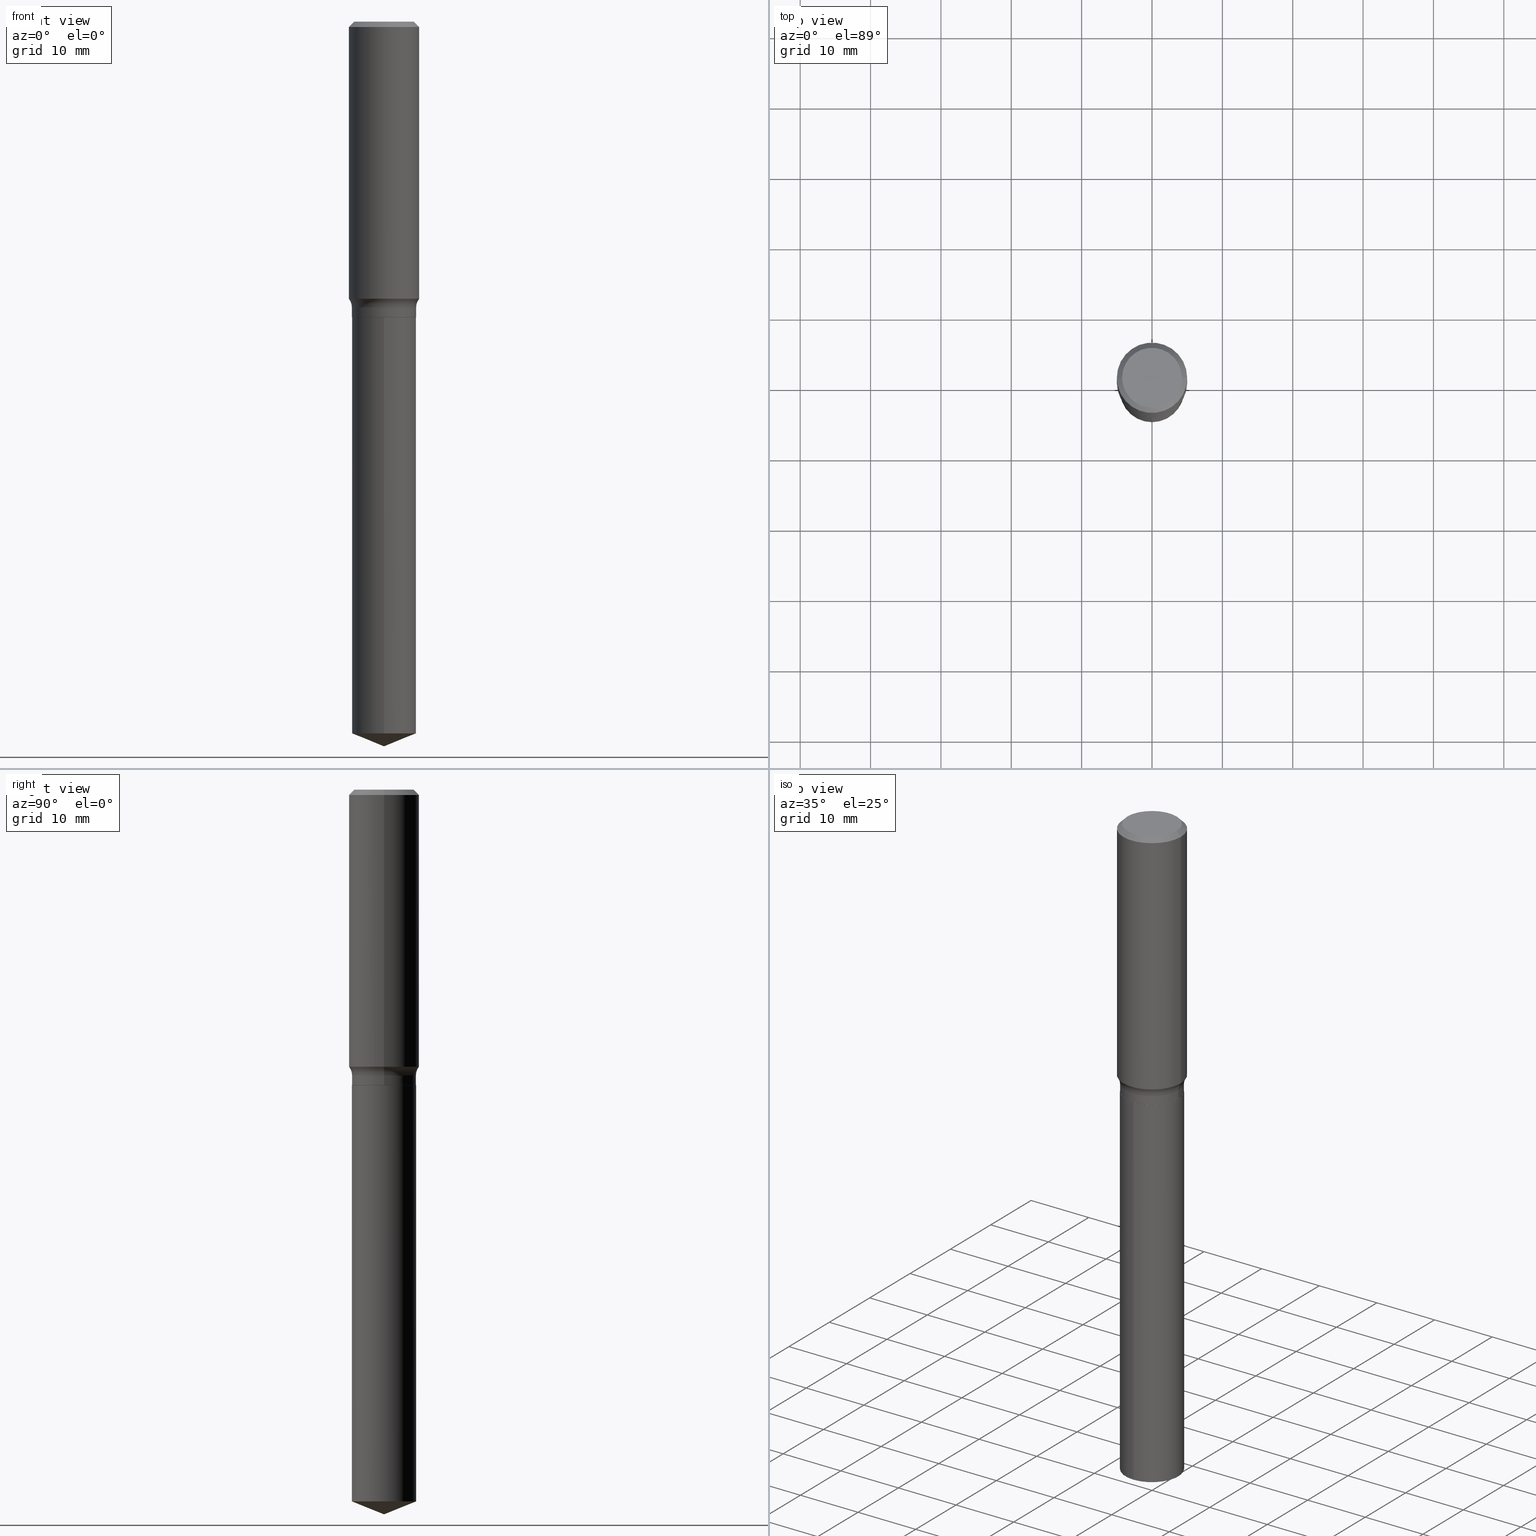
[diagram: canonical four-view strip — front | top / right | iso, engineering-drawing reading convention]
A machine part, canonical four-view strip (front | top / right | iso — engineering-drawing reading convention). The complete STEP part file that produces these views, byte-faithful:
ISO-10303-21;
HEADER;
FILE_DESCRIPTION (( 'STEP AP203' ),
    '1' );
FILE_NAME ('56855.STEP',
    '2024-04-19T14:28:54',
    ( '' ),
    ( '' ),
    'SwSTEP 2.0',
    'SolidWorks 2023',
    '' );
FILE_SCHEMA (( 'CONFIG_CONTROL_DESIGN' ));
ENDSEC;

DATA;
#1 = DIRECTION ( 'NONE',  ( 1.000000000000000000, -6.982962677686265922E-15, 4.876176775795935232E-29 ) ) ;
#2 = EDGE_CURVE ( 'NONE', #378, #148, #270, .T. ) ;
#3 = EDGE_LOOP ( 'NONE', ( #83, #303, #398, #216 ) ) ;
#4 = EDGE_LOOP ( 'NONE', ( #174, #30, #416, #418 ) ) ;
#5 = CARTESIAN_POINT ( 'NONE',  ( -0.2576999999999999846, -3.752159178890294342E-15, -1.599099999999999522 ) ) ;
#6 = CARTESIAN_POINT ( 'NONE',  ( -0.1968500000000000527, 1.271501487869850317E-15, -0.02952750000000022024 ) ) ;
#7 = VERTEX_POINT ( 'NONE', #200 ) ;
#8 = AXIS2_PLACEMENT_3D ( 'NONE', #356, #61, #22 ) ;
#9 = SHAPE_DEFINITION_REPRESENTATION ( #58, #204 ) ;
#10 = CONICAL_SURFACE ( 'NONE', #412, 97.44436430772901758, 1.186823891356147076 ) ;
#11 = DIRECTION ( 'NONE',  ( -2.445468806185136877E-29, 3.491481338843145188E-15, 1.000000000000000000 ) ) ;
#12 = EDGE_CURVE ( 'NONE', #119, #148, #323, .T. ) ;
#13 = DIRECTION ( 'NONE',  ( -2.445468806185136597E-29, 3.491481338843145583E-15, 1.000000000000000000 ) ) ;
#14 = CARTESIAN_POINT ( 'NONE',  ( -8.635920228172456826E-28, 1.233058352646283818E-13, 35.31507874015748172 ) ) ;
#15 = CC_DESIGN_DATE_AND_TIME_ASSIGNMENT ( #210, #109, ( #226 ) ) ;
#16 = CARTESIAN_POINT ( 'NONE',  ( -0.1968500000000002470, -4.014145957537273181E-15, -1.550301664987419059 ) ) ;
#17 = LOCAL_TIME ( 10, 28, 54.00000000000000000, #401 ) ;
#18 = CARTESIAN_POINT ( 'NONE',  ( -1.001697619218021790E-46, 1.430158722866389718E-32, 4.096137381448108366E-18 ) ) ;
#19 = EDGE_CURVE ( 'NONE', #7, #187, #92, .T. ) ;
#20 = DIRECTION ( 'NONE',  ( 1.000000000000000000, -6.982962677686267499E-15, 4.876294436782262290E-29 ) ) ;
#21 = PRODUCT_RELATED_PRODUCT_CATEGORY ( 'detail', '', ( #359 ) ) ;
#22 = DIRECTION ( 'NONE',  ( -6.982962677686265922E-15, -1.000000000000000000, 3.040454083098790380E-15 ) ) ;
#23 = CIRCLE ( 'NONE', #346, 0.1796999999999999986 ) ;
#24 = CIRCLE ( 'NONE', #389, 0.1791999999999999982 ) ;
#25 = ORIENTED_EDGE ( 'NONE', *, *, #135, .T. ) ;
#26 = PERSON_AND_ORGANIZATION ( #239, #57 ) ;
#27 = EDGE_CURVE ( 'NONE', #294, #164, #308, .T. ) ;
#28 = EDGE_LOOP ( 'NONE', ( #234, #407, #32, #69 ) ) ;
#29 = COORDINATED_UNIVERSAL_TIME_OFFSET ( 5, 0, .BEHIND. ) ;
#30 = ORIENTED_EDGE ( 'NONE', *, *, #12, .T. ) ;
#31 = PERSON_AND_ORGANIZATION_ROLE ( 'design_supplier' ) ;
#32 = ORIENTED_EDGE ( 'NONE', *, *, #473, .F. ) ;
#33 = PERSON_AND_ORGANIZATION ( #239, #57 ) ;
#34 = CARTESIAN_POINT ( 'NONE',  ( -0.1968500000000001360, 1.398703375343758182E-15, -9.682923725166790684E-30 ) ) ;
#35 = APPROVAL_DATE_TIME ( #64, #91 ) ;
#36 = EDGE_CURVE ( 'NONE', #425, #119, #253, .T. ) ;
#37 = DIRECTION ( 'NONE',  ( 1.000000000000000000, -6.982962677686266711E-15, 0.000000000000000000 ) ) ;
#38 = CYLINDRICAL_SURFACE ( 'NONE', #117, 0.1796999999999999986 ) ;
#39 = ORIENTED_EDGE ( 'NONE', *, *, #319, .T. ) ;
#40 = EDGE_CURVE ( 'NONE', #164, #294, #228, .T. ) ;
#41 = CIRCLE ( 'NONE', #315, 0.07799999999999995826 ) ;
#42 = VECTOR ( 'NONE', #392, 39.37007874015748143 ) ;
#43 = ORIENTED_EDGE ( 'NONE', *, *, #40, .T. ) ;
#44 = CONICAL_SURFACE ( 'NONE', #324, 0.1968500000000000527, 0.7853981633974456145 ) ;
#45 = UNCERTAINTY_MEASURE_WITH_UNIT (LENGTH_MEASURE( 1.000000000000000082E-05 ), #62, 'distance_accuracy_value', 'NONE');
#46 = ORIENTED_EDGE ( 'NONE', *, *, #51, .F. ) ;
#47 = DIRECTION ( 'NONE',  ( -2.445468806185136597E-29, 3.491481338843145583E-15, 1.000000000000000000 ) ) ;
#48 = DIRECTION ( 'NONE',  ( -0.7071067811865454633, 2.468850131082235761E-15, -0.7071067811865493491 ) ) ;
#49 = EDGE_LOOP ( 'NONE', ( #25, #372 ) ) ;
#50 = CARTESIAN_POINT ( 'NONE',  ( -1.254838393180181498E-15, -0.1797000000000057718, -1.653399999999999093 ) ) ;
#51 = EDGE_CURVE ( 'NONE', #310, #133, #261, .T. ) ;
#52 = CIRCLE ( 'NONE', #142, 0.1796999999999999986 ) ;
#53 = CARTESIAN_POINT ( 'NONE',  ( -0.1791999999999999982, -4.499522663161157054E-15, -1.653399999999999981 ) ) ;
#54 = DIRECTION ( 'NONE',  ( 0.7071067811864267805, -2.468850131080992517E-15, 0.7071067811866682540 ) ) ;
#55 = DIRECTION ( 'NONE',  ( -2.445468806185136597E-29, 3.491481338843145583E-15, 1.000000000000000000 ) ) ;
#56 = DIRECTION ( 'NONE',  ( -2.445468806185136597E-29, 3.491481338843145583E-15, 1.000000000000000000 ) ) ;
#57 = ORGANIZATION ( 'UNSPECIFIED', 'UNSPECIFIED', '' ) ;
#58 = PRODUCT_DEFINITION_SHAPE ( 'NONE', 'NONE',  #226 ) ;
#59 = ORIENTED_EDGE ( 'NONE', *, *, #441, .F. ) ;
#60 = PLANE ( 'NONE',  #362 ) ;
#61 = DIRECTION ( 'NONE',  ( -2.445395198468639385E-29, 3.491586749282660968E-15, 1.000000000000000000 ) ) ;
#62 =( CONVERSION_BASED_UNIT ( 'INCH', #399 ) LENGTH_UNIT ( ) NAMED_UNIT ( #128 ) );
#63 = DIRECTION ( 'NONE',  ( 1.000000000000000000, -6.982962677686269866E-15, 0.000000000000000000 ) ) ;
#64 = DATE_AND_TIME ( #144, #17 ) ;
#65 = EDGE_CURVE ( 'NONE', #187, #294, #179, .T. ) ;
#66 = AXIS2_PLACEMENT_3D ( 'NONE', #233, #80, #153 ) ;
#67 = CIRCLE ( 'NONE', #331, 0.1791999999999999982 ) ;
#68 = FACE_OUTER_BOUND ( 'NONE', #28, .T. ) ;
#69 = ORIENTED_EDGE ( 'NONE', *, *, #275, .F. ) ;
#70 = PERSON_AND_ORGANIZATION ( #239, #57 ) ;
#71 = ADVANCED_FACE ( 'NONE', ( #406 ), #365, .T. ) ;
#72 = ORIENTED_EDGE ( 'NONE', *, *, #114, .F. ) ;
#73 = AXIS2_PLACEMENT_3D ( 'NONE', #444, #481, #259 ) ;
#74 = CARTESIAN_POINT ( 'NONE',  ( 0.000000000000000000, 0.000000000000000000, 0.000000000000000000 ) ) ;
#75 = CONICAL_SURFACE ( 'NONE', #403, 0.1791999999999999982, 0.7853981633972775267 ) ;
#76 = COORDINATED_UNIVERSAL_TIME_OFFSET ( 5, 0, .BEHIND. ) ;
#77 = CARTESIAN_POINT ( 'NONE',  ( 0.2576999999999999846, -7.382737290983823371E-15, -1.599099999999999522 ) ) ;
#78 = EDGE_LOOP ( 'NONE', ( #108, #339 ) ) ;
#79 = ADVANCED_FACE ( 'NONE', ( #68 ), #222, .T. ) ;
#80 = DIRECTION ( 'NONE',  ( -2.445395198468639385E-29, 3.491586749282660968E-15, 1.000000000000000000 ) ) ;
#81 = CIRCLE ( 'NONE', #88, 0.1968500000000002470 ) ;
#82 = CC_DESIGN_APPROVAL ( #91, ( #226 ) ) ;
#83 = ORIENTED_EDGE ( 'NONE', *, *, #487, .F. ) ;
#84 = ORIENTED_EDGE ( 'NONE', *, *, #361, .T. ) ;
#85 = DIRECTION ( 'NONE',  ( -1.000000000000000000, 6.982962677686266711E-15, 0.000000000000000000 ) ) ;
#86 = ORIENTED_EDGE ( 'NONE', *, *, #248, .F. ) ;
#87 = CARTESIAN_POINT ( 'NONE',  ( 7.220858017463216492E-31, -1.030947152326917595E-16, -0.02952750000000022024 ) ) ;
#88 = AXIS2_PLACEMENT_3D ( 'NONE', #439, #217, #63 ) ;
#89 = LINE ( 'NONE', #465, #195 ) ;
#90 = FACE_OUTER_BOUND ( 'NONE', #208, .T. ) ;
#91 = APPROVAL ( #446, 'UNSPECIFIED' ) ;
#92 = LINE ( 'NONE', #53, #240 ) ;
#93 = DIRECTION ( 'NONE',  ( -6.982962677686265922E-15, -1.000000000000000000, 3.040454083098790380E-15 ) ) ;
#94 = VECTOR ( 'NONE', #102, 39.37007874015748854 ) ;
#95 = DIRECTION ( 'NONE',  ( 0.000000000000000000, 0.000000000000000000, 1.000000000000000000 ) ) ;
#96 = SECURITY_CLASSIFICATION ( '', '', #177 ) ;
#97 = DIRECTION ( 'NONE',  ( -2.445395198468639385E-29, 3.491586749282660968E-15, 1.000000000000000000 ) ) ;
#98 = CC_DESIGN_PERSON_AND_ORGANIZATION_ASSIGNMENT ( #207, #360, ( #359 ) ) ;
#99 = CALENDAR_DATE ( 2024, 19, 4 ) ;
#100 = TOROIDAL_SURFACE ( 'NONE', #443, 0.2576999999999999846, 0.07799999999999997213 ) ;
#101 = AXIS2_PLACEMENT_3D ( 'NONE', #87, #55, #246 ) ;
#102 = DIRECTION ( 'NONE',  ( 0.7071067811865454633, -7.319954787623246579E-15, -0.7071067811865493491 ) ) ;
#103 = VERTEX_POINT ( 'NONE', #326 ) ;
#104 = APPROVAL_ROLE ( '' ) ;
#105 = EDGE_CURVE ( 'NONE', #119, #464, #23, .T. ) ;
#106 = EDGE_LOOP ( 'NONE', ( #191, #332, #452 ) ) ;
#107 = PERSON_AND_ORGANIZATION_ROLE ( 'classification_officer' ) ;
#108 = ORIENTED_EDGE ( 'NONE', *, *, #289, .F. ) ;
#109 = DATE_TIME_ROLE ( 'creation_date' ) ;
#110 = DIRECTION ( 'NONE',  ( -2.445468806185136597E-29, 3.491481338843145583E-15, 1.000000000000000000 ) ) ;
#111 = EDGE_LOOP ( 'NONE', ( #213, #349, #157 ) ) ;
#112 = CYLINDRICAL_SURFACE ( 'NONE', #371, 0.1796999999999999986 ) ;
#113 = EDGE_LOOP ( 'NONE', ( #46, #156, #141, #382 ) ) ;
#114 = EDGE_CURVE ( 'NONE', #190, #426, #81, .T. ) ;
#115 = CARTESIAN_POINT ( 'NONE',  ( -0.1796999999999999986, -4.400303360798053026E-15, -1.652899999999999814 ) ) ;
#116 = LINE ( 'NONE', #6, #429 ) ;
#117 = AXIS2_PLACEMENT_3D ( 'NONE', #336, #110, #384 ) ;
#118 = CIRCLE ( 'NONE', #292, 0.1673224999999999851 ) ;
#119 = VERTEX_POINT ( 'NONE', #479 ) ;
#120 = CARTESIAN_POINT ( 'NONE',  ( 0.000000000000000000, 0.000000000000000000, 0.000000000000000000 ) ) ;
#121 = EDGE_CURVE ( 'NONE', #148, #378, #254, .T. ) ;
#122 = PLANE ( 'NONE',  #209 ) ;
#123 = ORIENTED_EDGE ( 'NONE', *, *, #295, .F. ) ;
#124 = DIRECTION ( 'NONE',  ( 1.000000000000000000, -6.982962677686264344E-15, 0.000000000000000000 ) ) ;
#125 = EDGE_LOOP ( 'NONE', ( #123, #387, #480, #297 ) ) ;
#126 = CARTESIAN_POINT ( 'NONE',  ( 0.1791999999999999982, -7.024162157484634705E-15, -1.653399999999999981 ) ) ;
#127 = CARTESIAN_POINT ( 'NONE',  ( -1.254838393180181498E-15, -0.1797000000000057718, -1.653399999999999093 ) ) ;
#128 = DIMENSIONAL_EXPONENTS ( 1.000000000000000000, 0.000000000000000000, 0.000000000000000000, 0.000000000000000000, 0.000000000000000000, 0.000000000000000000, 0.000000000000000000 ) ;
#129 = CIRCLE ( 'NONE', #211, 0.1796999999999999986 ) ;
#130 = DIRECTION ( 'NONE',  ( 1.000000000000000000, -6.982962677686265133E-15, 4.883557194083111780E-29 ) ) ;
#131 = CC_DESIGN_DATE_AND_TIME_ASSIGNMENT ( #486, #139, ( #96 ) ) ;
#132 = DIRECTION ( 'NONE',  ( -2.445468806185136597E-29, 3.491481338843145583E-15, 1.000000000000000000 ) ) ;
#133 = VERTEX_POINT ( 'NONE', #400 ) ;
#134 = PLANE ( 'NONE',  #337 ) ;
#135 = EDGE_CURVE ( 'NONE', #232, #310, #150, .T. ) ;
#136 =( LENGTH_UNIT ( ) NAMED_UNIT ( * ) SI_UNIT ( $, .METRE. ) );
#137 = CC_DESIGN_PERSON_AND_ORGANIZATION_ASSIGNMENT ( #70, #31, ( #176 ) ) ;
#138 = DIRECTION ( 'NONE',  ( -6.982962677686265922E-15, -1.000000000000000000, 3.040454083098790380E-15 ) ) ;
#139 = DATE_TIME_ROLE ( 'classification_date' ) ;
#140 = CARTESIAN_POINT ( 'NONE',  ( 9.738654951238319122E-29, -1.390470851953747405E-14, -3.982396487217422898 ) ) ;
#141 = ORIENTED_EDGE ( 'NONE', *, *, #169, .T. ) ;
#142 = AXIS2_PLACEMENT_3D ( 'NONE', #282, #467, #431 ) ;
#143 = DIRECTION ( 'NONE',  ( -2.445468806185136877E-29, 3.491481338843145188E-15, 1.000000000000000000 ) ) ;
#144 = CALENDAR_DATE ( 2024, 19, 4 ) ;
#145 = DIRECTION ( 'NONE',  ( 1.000000000000000000, -6.982962677686267499E-15, 4.876294436782262290E-29 ) ) ;
#146 = VERTEX_POINT ( 'NONE', #296 ) ;
#147 = DIRECTION ( 'NONE',  ( -2.445468806185136597E-29, 3.491481338843145583E-15, 1.000000000000000000 ) ) ;
#148 = VERTEX_POINT ( 'NONE', #368 ) ;
#149 = FACE_OUTER_BOUND ( 'NONE', #111, .T. ) ;
#150 = CIRCLE ( 'NONE', #202, 0.1673224999999999851 ) ;
#151 = ADVANCED_FACE ( 'NONE', ( #448 ), #38, .T. ) ;
#152 = ORIENTED_EDGE ( 'NONE', *, *, #40, .F. ) ;
#153 = DIRECTION ( 'NONE',  ( -6.982962677686265922E-15, -1.000000000000000000, 3.040454083098790380E-15 ) ) ;
#154 = CARTESIAN_POINT ( 'NONE',  ( 0.1673224999999999851, -1.300749711163072594E-15, 4.096137381456741925E-18 ) ) ;
#155 = DIRECTION ( 'NONE',  ( -1.000000000000000000, 7.105427357601001859E-15, 0.000000000000000000 ) ) ;
#156 = ORIENTED_EDGE ( 'NONE', *, *, #135, .F. ) ;
#157 = ORIENTED_EDGE ( 'NONE', *, *, #105, .F. ) ;
#158 = FACE_OUTER_BOUND ( 'NONE', #3, .T. ) ;
#159 = CARTESIAN_POINT ( 'NONE',  ( -1.254838393180124503E-15, -0.1797000000000138487, -3.982396487217422010 ) ) ;
#160 = DIRECTION ( 'NONE',  ( -2.445468806185136597E-29, 3.491481338843145583E-15, 1.000000000000000000 ) ) ;
#161 = FACE_OUTER_BOUND ( 'NONE', #342, .T. ) ;
#162 = CONICAL_SURFACE ( 'NONE', #410, 0.1968500000000000527, 0.7853981633974456145 ) ;
#163 = AXIS2_PLACEMENT_3D ( 'NONE', #478, #95, #279 ) ;
#164 = VERTEX_POINT ( 'NONE', #456 ) ;
#165 = FACE_OUTER_BOUND ( 'NONE', #4, .T. ) ;
#166 = LINE ( 'NONE', #50, #317 ) ;
#167 =( NAMED_UNIT ( * ) PLANE_ANGLE_UNIT ( ) SI_UNIT ( $, .RADIAN. ) );
#168 =( GEOMETRIC_REPRESENTATION_CONTEXT ( 3 ) GLOBAL_UNCERTAINTY_ASSIGNED_CONTEXT ( ( #45 ) ) GLOBAL_UNIT_ASSIGNED_CONTEXT ( ( #62, #167, #247 ) ) REPRESENTATION_CONTEXT ( 'NONE', 'WORKASPACE' ) );
#169 = EDGE_CURVE ( 'NONE', #232, #103, #116, .T. ) ;
#170 = CARTESIAN_POINT ( 'NONE',  ( 0.000000000000000000, 0.000000000000000000, 0.000000000000000000 ) ) ;
#171 = DIRECTION ( 'NONE',  ( 1.000000000000000000, -6.982962677686266711E-15, 4.876176775795935793E-29 ) ) ;
#172 = EDGE_LOOP ( 'NONE', ( #369, #227, #152, #385 ) ) ;
#173 = PERSON_AND_ORGANIZATION_ROLE ( 'creator' ) ;
#174 = ORIENTED_EDGE ( 'NONE', *, *, #405, .T. ) ;
#175 = DATE_AND_TIME ( #329, #250 ) ;
#176 = PRODUCT_DEFINITION_FORMATION_WITH_SPECIFIED_SOURCE ( 'ANY', '', #359, .NOT_KNOWN. ) ;
#177 = SECURITY_CLASSIFICATION_LEVEL ( 'unclassified' ) ;
#178 = DIRECTION ( 'NONE',  ( -2.445468806185136877E-29, 3.491481338843145188E-15, 1.000000000000000000 ) ) ;
#179 = LINE ( 'NONE', #212, #285 ) ;
#180 = ORIENTED_EDGE ( 'NONE', *, *, #424, .T. ) ;
#181 = CARTESIAN_POINT ( 'NONE',  ( -8.635920228172456826E-28, 1.233058352646283818E-13, 35.31507874015748172 ) ) ;
#182 = ADVANCED_FACE ( 'NONE', ( #302 ), #122, .F. ) ;
#183 = FACE_OUTER_BOUND ( 'NONE', #411, .T. ) ;
#184 = ORIENTED_EDGE ( 'NONE', *, *, #105, .T. ) ;
#185 = AXIS2_PLACEMENT_3D ( 'NONE', #74, #215, #171 ) ;
#186 = AXIS2_PLACEMENT_3D ( 'NONE', #77, #305, #314 ) ;
#187 = VERTEX_POINT ( 'NONE', #115 ) ;
#188 = DIRECTION ( 'NONE',  ( -1.000000000000000000, 6.982962677686266711E-15, 0.000000000000000000 ) ) ;
#189 = ADVANCED_FACE ( 'NONE', ( #225 ), #112, .T. ) ;
#190 = VERTEX_POINT ( 'NONE', #423 ) ;
#191 = ORIENTED_EDGE ( 'NONE', *, *, #345, .F. ) ;
#192 = DIRECTION ( 'NONE',  ( -2.445468806185136597E-29, 3.491481338843145583E-15, 1.000000000000000000 ) ) ;
#193 = CARTESIAN_POINT ( 'NONE',  ( 2.283242839927203159E-29, -8.293371871047547882E-15, -1.653399999999999981 ) ) ;
#194 = CIRCLE ( 'NONE', #476, 0.1968500000000000527 ) ;
#195 = VECTOR ( 'NONE', #284, 39.37007874015748143 ) ;
#196 = DIRECTION ( 'NONE',  ( -2.445468806185136597E-29, 3.491481338843145583E-15, 1.000000000000000000 ) ) ;
#197 = LINE ( 'NONE', #126, #277 ) ;
#198 = ADVANCED_FACE ( 'NONE', ( #383 ), #341, .T. ) ;
#199 = CARTESIAN_POINT ( 'NONE',  ( 4.043338124146503856E-29, -5.772815245643255193E-15, -1.653399999999999537 ) ) ;
#200 = CARTESIAN_POINT ( 'NONE',  ( -0.1791999999999999982, -4.496873435987045064E-15, -1.653399999999999981 ) ) ;
#201 = DIRECTION ( 'NONE',  ( -1.000000000000000000, 6.982962677686265922E-15, -4.876176775795935793E-29 ) ) ;
#202 = AXIS2_PLACEMENT_3D ( 'NONE', #440, #485, #145 ) ;
#203 = CIRCLE ( 'NONE', #101, 0.1968500000000000527 ) ;
#204 = ADVANCED_BREP_SHAPE_REPRESENTATION ( '56855', ( #243, #390, #163 ), #168 ) ;
#205 = DIRECTION ( 'NONE',  ( 1.000000000000000000, -6.982962677686264344E-15, 0.000000000000000000 ) ) ;
#206 = EDGE_CURVE ( 'NONE', #426, #294, #41, .T. ) ;
#207 = PERSON_AND_ORGANIZATION ( #239, #57 ) ;
#208 = EDGE_LOOP ( 'NONE', ( #420, #180, #490, #273 ) ) ;
#209 = AXIS2_PLACEMENT_3D ( 'NONE', #193, #265, #415 ) ;
#210 = DATE_AND_TIME ( #99, #396 ) ;
#211 = AXIS2_PLACEMENT_3D ( 'NONE', #388, #352, #93 ) ;
#212 = CARTESIAN_POINT ( 'NONE',  ( -0.1796999999999999986, 1.276845296160900024E-15, -8.839326357188065585E-30 ) ) ;
#213 = ORIENTED_EDGE ( 'NONE', *, *, #36, .F. ) ;
#214 = APPLICATION_CONTEXT ( 'configuration controlled 3d designs of mechanical parts and assemblies' ) ;
#215 = DIRECTION ( 'NONE',  ( -2.445468806185136597E-29, 3.491481338843145583E-15, 1.000000000000000000 ) ) ;
#216 = ORIENTED_EDGE ( 'NONE', *, *, #169, .F. ) ;
#217 = DIRECTION ( 'NONE',  ( -2.445468806185136597E-29, 3.491481338843145583E-15, 1.000000000000000000 ) ) ;
#218 = ORIENTED_EDGE ( 'NONE', *, *, #19, .T. ) ;
#219 = COORDINATED_UNIVERSAL_TIME_OFFSET ( 5, 0, .BEHIND. ) ;
#220 = AXIS2_PLACEMENT_3D ( 'NONE', #291, #97, #138 ) ;
#221 = AXIS2_PLACEMENT_3D ( 'NONE', #375, #379, #340 ) ;
#222 = CYLINDRICAL_SURFACE ( 'NONE', #421, 0.1968500000000001360 ) ;
#223 = ORIENTED_EDGE ( 'NONE', *, *, #65, .F. ) ;
#224 = ADVANCED_FACE ( 'NONE', ( #419 ), #162, .T. ) ;
#225 = FACE_OUTER_BOUND ( 'NONE', #172, .T. ) ;
#226 = PRODUCT_DEFINITION ( 'UNKNOWN', '', #176, #458 ) ;
#227 = ORIENTED_EDGE ( 'NONE', *, *, #65, .T. ) ;
#228 = CIRCLE ( 'NONE', #73, 0.1796999999999999986 ) ;
#229 = DIRECTION ( 'NONE',  ( 2.445468806185136597E-29, -3.491481338843145583E-15, -1.000000000000000000 ) ) ;
#230 = ADVANCED_FACE ( 'NONE', ( #183 ), #100, .F. ) ;
#231 = AXIS2_PLACEMENT_3D ( 'NONE', #244, #132, #130 ) ;
#232 = VERTEX_POINT ( 'NONE', #299 ) ;
#233 = CARTESIAN_POINT ( 'NONE',  ( 4.043338124146503856E-29, -5.772815245643255193E-15, -1.653399999999999537 ) ) ;
#234 = ORIENTED_EDGE ( 'NONE', *, *, #114, .T. ) ;
#235 = DIRECTION ( 'NONE',  ( 2.445468806185136597E-29, -3.491481338843145583E-15, -1.000000000000000000 ) ) ;
#236 = ORIENTED_EDGE ( 'NONE', *, *, #255, .F. ) ;
#237 = CARTESIAN_POINT ( 'NONE',  ( 4.043338124146504977E-29, -5.772815245643255982E-15, -1.653399999999999981 ) ) ;
#238 = DATE_AND_TIME ( #344, #348 ) ;
#239 = PERSON ( 'UNSPECIFIED', 'UNSPECIFIED', 'UNSPECIFIED', ('UNSPECIFIED'), ('UNSPECIFIED'), ('UNSPECIFIED') ) ;
#240 = VECTOR ( 'NONE', #471, 39.37007874015748143 ) ;
#241 = APPROVAL_PERSON_ORGANIZATION ( #484, #91, #442 ) ;
#242 = DIRECTION ( 'NONE',  ( -2.445395198468639105E-29, 3.491586749282660968E-15, 1.000000000000000000 ) ) ;
#243 = MANIFOLD_SOLID_BREP ( 'Body-Move/Copy2[1]', #468 ) ;
#244 = CARTESIAN_POINT ( 'NONE',  ( 3.910549167970651288E-29, -5.583227808944072017E-15, -1.599099999999999522 ) ) ;
#245 = CARTESIAN_POINT ( 'NONE',  ( 1.276845296160940256E-15, 0.1796999999999942255, -1.653400000000000203 ) ) ;
#246 = DIRECTION ( 'NONE',  ( 1.000000000000000000, -6.982962677686266711E-15, 0.000000000000000000 ) ) ;
#247 =( NAMED_UNIT ( * ) SI_UNIT ( $, .STERADIAN. ) SOLID_ANGLE_UNIT ( ) );
#248 = EDGE_CURVE ( 'NONE', #426, #103, #307, .T. ) ;
#249 = CYLINDRICAL_SURFACE ( 'NONE', #422, 0.1796999999999999986 ) ;
#250 = LOCAL_TIME ( 10, 28, 54.00000000000000000, #29 ) ;
#251 = APPLICATION_PROTOCOL_DEFINITION ( 'international standard', 'config_control_design', 1994, #358 ) ;
#252 = CARTESIAN_POINT ( 'NONE',  ( 9.916323070170521281E-29, -1.415803569709979862E-14, -4.054999999999999716 ) ) ;
#253 = LINE ( 'NONE', #252, #469 ) ;
#254 = CIRCLE ( 'NONE', #220, 0.1796999999999999986 ) ;
#255 = EDGE_CURVE ( 'NONE', #103, #133, #194, .T. ) ;
#256 = CIRCLE ( 'NONE', #221, 0.1968500000000002470 ) ;
#257 = CARTESIAN_POINT ( 'NONE',  ( 0.1968500000000000527, -1.453583746094018101E-15, -0.02952750000000022024 ) ) ;
#258 = CC_DESIGN_PERSON_AND_ORGANIZATION_ASSIGNMENT ( #26, #107, ( #96 ) ) ;
#259 = DIRECTION ( 'NONE',  ( 1.000000000000000000, -6.982962677686267499E-15, 0.000000000000000000 ) ) ;
#260 = ORIENTED_EDGE ( 'NONE', *, *, #275, .T. ) ;
#261 = LINE ( 'NONE', #257, #94 ) ;
#262 = ORIENTED_EDGE ( 'NONE', *, *, #12, .F. ) ;
#263 = APPROVAL_ROLE ( '' ) ;
#264 = CARTESIAN_POINT ( 'NONE',  ( 4.043338124146504977E-29, -5.772815245643255982E-15, -1.653399999999999981 ) ) ;
#265 = DIRECTION ( 'NONE',  ( -2.438088387897960049E-29, 3.491481338843145188E-15, 1.000000000000000000 ) ) ;
#266 = EDGE_LOOP ( 'NONE', ( #343, #218, #59, #457 ) ) ;
#267 = ADVANCED_FACE ( 'NONE', ( #450 ), #453, .T. ) ;
#268 = ORIENTED_EDGE ( 'NONE', *, *, #438, .T. ) ;
#269 = CC_DESIGN_PERSON_AND_ORGANIZATION_ASSIGNMENT ( #413, #483, ( #176 ) ) ;
#270 = CIRCLE ( 'NONE', #8, 0.1796999999999999986 ) ;
#271 = EDGE_LOOP ( 'NONE', ( #262, #184, #84, #409 ) ) ;
#272 = DIRECTION ( 'NONE',  ( 7.105427357601001859E-15, 1.000000000000000000, -3.491481338843145583E-15 ) ) ;
#273 = ORIENTED_EDGE ( 'NONE', *, *, #438, .F. ) ;
#274 = LINE ( 'NONE', #311, #301 ) ;
#275 = EDGE_CURVE ( 'NONE', #190, #133, #274, .T. ) ;
#276 = DIRECTION ( 'NONE',  ( 2.438088387897960049E-29, -3.491481338843145188E-15, -1.000000000000000000 ) ) ;
#277 = VECTOR ( 'NONE', #54, 39.37007874015748143 ) ;
#278 = FACE_OUTER_BOUND ( 'NONE', #106, .T. ) ;
#279 = DIRECTION ( 'NONE',  ( 1.000000000000000000, 0.000000000000000000, 0.000000000000000000 ) ) ;
#280 = CARTESIAN_POINT ( 'NONE',  ( 9.916077529790332067E-29, -1.415838426834118836E-14, -4.054999999999999716 ) ) ;
#281 = ADVANCED_FACE ( 'NONE', ( #158 ), #44, .T. ) ;
#282 = CARTESIAN_POINT ( 'NONE',  ( 4.042115389743411055E-29, -5.771069504973833690E-15, -1.652899999999999814 ) ) ;
#283 = CC_DESIGN_PERSON_AND_ORGANIZATION_ASSIGNMENT ( #33, #173, ( #226 ) ) ;
#284 = DIRECTION ( 'NONE',  ( -6.474490251793184940E-15, -0.9271838545667872022, 0.3746065934159125144 ) ) ;
#285 = VECTOR ( 'NONE', #143, 39.37007874015748143 ) ;
#286 = TOROIDAL_SURFACE ( 'NONE', #231, 0.2576999999999999846, 0.07799999999999997213 ) ;
#287 = MECHANICAL_CONTEXT ( 'NONE', #358, 'mechanical' ) ;
#288 = DIRECTION ( 'NONE',  ( -2.445395198468639385E-29, 3.491586749282660968E-15, 1.000000000000000000 ) ) ;
#289 = EDGE_CURVE ( 'NONE', #366, #7, #67, .T. ) ;
#290 = PERSON_AND_ORGANIZATION ( #239, #57 ) ;
#291 = CARTESIAN_POINT ( 'NONE',  ( 4.043338124146503856E-29, -5.772815245643255193E-15, -1.653399999999999537 ) ) ;
#292 = AXIS2_PLACEMENT_3D ( 'NONE', #18, #357, #20 ) ;
#293 = DIRECTION ( 'NONE',  ( -2.445468806185136597E-29, 3.491481338843145583E-15, 1.000000000000000000 ) ) ;
#294 = VERTEX_POINT ( 'NONE', #427 ) ;
#295 = EDGE_CURVE ( 'NONE', #426, #190, #256, .T. ) ;
#296 = CARTESIAN_POINT ( 'NONE',  ( 0.1796999999999999986, -7.025907898154056209E-15, -1.652899999999999814 ) ) ;
#297 = ORIENTED_EDGE ( 'NONE', *, *, #319, .F. ) ;
#298 = APPROVAL_DATE_TIME ( #175, #306 ) ;
#299 = CARTESIAN_POINT ( 'NONE',  ( -0.1673224999999999851, 1.219954130253505460E-15, 4.096137381439757534E-18 ) ) ;
#300 = APPROVAL ( #449, 'UNSPECIFIED' ) ;
#301 = VECTOR ( 'NONE', #11, 39.37007874015748143 ) ;
#302 = FACE_OUTER_BOUND ( 'NONE', #78, .T. ) ;
#303 = ORIENTED_EDGE ( 'NONE', *, *, #51, .T. ) ;
#304 = ORIENTED_EDGE ( 'NONE', *, *, #295, .T. ) ;
#305 = DIRECTION ( 'NONE',  ( -6.982962677686266711E-15, -1.000000000000000000, 3.491481338843145583E-15 ) ) ;
#306 = APPROVAL ( #367, 'UNSPECIFIED' ) ;
#307 = LINE ( 'NONE', #34, #435 ) ;
#308 = CIRCLE ( 'NONE', #330, 0.1796999999999999986 ) ;
#309 = CC_DESIGN_APPROVAL ( #306, ( #176 ) ) ;
#310 = VERTEX_POINT ( 'NONE', #154 ) ;
#311 = CARTESIAN_POINT ( 'NONE',  ( 0.1968500000000001360, -1.374596203102542594E-15, 9.598753983154306463E-30 ) ) ;
#312 = ADVANCED_FACE ( 'NONE', ( #149 ), #381, .T. ) ;
#313 = CARTESIAN_POINT ( 'NONE',  ( -5.008488096090108951E-47, 7.150793614331948590E-33, 2.048068690724054183E-18 ) ) ;
#314 = DIRECTION ( 'NONE',  ( 1.000000000000000000, -6.982962677686261977E-15, 0.000000000000000000 ) ) ;
#315 = AXIS2_PLACEMENT_3D ( 'NONE', #5, #272, #155 ) ;
#316 = CIRCLE ( 'NONE', #492, 0.1796999999999999986 ) ;
#317 = VECTOR ( 'NONE', #242, 39.37007874015748143 ) ;
#318 = CARTESIAN_POINT ( 'NONE',  ( 4.042115389743411055E-29, -5.771069504973833690E-15, -1.652899999999999814 ) ) ;
#319 = EDGE_CURVE ( 'NONE', #190, #164, #353, .T. ) ;
#320 = DIRECTION ( 'NONE',  ( 1.000000000000000000, -6.982962677686267499E-15, 0.000000000000000000 ) ) ;
#321 = DIRECTION ( 'NONE',  ( 2.445395198468638824E-29, -3.491586749282660968E-15, -1.000000000000000000 ) ) ;
#322 = DIRECTION ( 'NONE',  ( 6.982962677686265922E-15, 1.000000000000000000, -3.491586749282660968E-15 ) ) ;
#323 = LINE ( 'NONE', #245, #380 ) ;
#324 = AXIS2_PLACEMENT_3D ( 'NONE', #463, #235, #85 ) ;
#325 = ADVANCED_FACE ( 'NONE', ( #161 ), #134, .F. ) ;
#326 = CARTESIAN_POINT ( 'NONE',  ( -0.1968500000000000527, -1.359268648713103540E-15, -0.02952750000000022024 ) ) ;
#327 = CALENDAR_DATE ( 2024, 19, 4 ) ;
#328 = DIRECTION ( 'NONE',  ( 6.588037525764796813E-15, 0.9271838545667896447, 0.3746065934159060196 ) ) ;
#329 = CALENDAR_DATE ( 2024, 19, 4 ) ;
#330 = AXIS2_PLACEMENT_3D ( 'NONE', #354, #13, #320 ) ;
#331 = AXIS2_PLACEMENT_3D ( 'NONE', #386, #192, #347 ) ;
#332 = ORIENTED_EDGE ( 'NONE', *, *, #36, .T. ) ;
#333 = CARTESIAN_POINT ( 'NONE',  ( 7.220858017463216492E-31, -1.030947152326917595E-16, -0.02952750000000022024 ) ) ;
#334 = DIRECTION ( 'NONE',  ( -2.445395198468639385E-29, 3.491586749282660968E-15, 1.000000000000000000 ) ) ;
#335 = DIRECTION ( 'NONE',  ( -2.445468806185136597E-29, 3.491481338843145583E-15, 1.000000000000000000 ) ) ;
#336 = CARTESIAN_POINT ( 'NONE',  ( 0.000000000000000000, 0.000000000000000000, 0.000000000000000000 ) ) ;
#337 = AXIS2_PLACEMENT_3D ( 'NONE', #199, #321, #322 ) ;
#338 = ADVANCED_FACE ( 'NONE', ( #278 ), #10, .T. ) ;
#339 = ORIENTED_EDGE ( 'NONE', *, *, #424, .F. ) ;
#340 = DIRECTION ( 'NONE',  ( 1.000000000000000000, -6.982962677686269866E-15, 0.000000000000000000 ) ) ;
#341 = CYLINDRICAL_SURFACE ( 'NONE', #66, 0.1796999999999999986 ) ;
#342 = EDGE_LOOP ( 'NONE', ( #445, #459 ) ) ;
#343 = ORIENTED_EDGE ( 'NONE', *, *, #289, .T. ) ;
#344 = CALENDAR_DATE ( 2024, 19, 4 ) ;
#345 = EDGE_CURVE ( 'NONE', #425, #464, #89, .T. ) ;
#346 = AXIS2_PLACEMENT_3D ( 'NONE', #140, #288, #489 ) ;
#347 = DIRECTION ( 'NONE',  ( 1.000000000000000000, -6.982962677686264344E-15, 0.000000000000000000 ) ) ;
#348 = LOCAL_TIME ( 10, 28, 54.00000000000000000, #76 ) ;
#349 = ORIENTED_EDGE ( 'NONE', *, *, #345, .T. ) ;
#350 = FACE_OUTER_BOUND ( 'NONE', #125, .T. ) ;
#351 = DIRECTION ( 'NONE',  ( 1.000000000000000000, -6.982962677686264344E-15, 0.000000000000000000 ) ) ;
#352 = DIRECTION ( 'NONE',  ( -2.445395198468639385E-29, 3.491586749282660968E-15, 1.000000000000000000 ) ) ;
#353 = CIRCLE ( 'NONE', #186, 0.07799999999999995826 ) ;
#354 = CARTESIAN_POINT ( 'NONE',  ( 3.910549167970651288E-29, -5.583227808944072017E-15, -1.599099999999999522 ) ) ;
#355 = DIRECTION ( 'NONE',  ( -6.982962677686265922E-15, -1.000000000000000000, 3.040454083098790380E-15 ) ) ;
#356 = CARTESIAN_POINT ( 'NONE',  ( 4.043338124146503856E-29, -5.772815245643255193E-15, -1.653399999999999537 ) ) ;
#357 = DIRECTION ( 'NONE',  ( -2.445468806185136597E-29, 3.491481338843145583E-15, 1.000000000000000000 ) ) ;
#358 = APPLICATION_CONTEXT ( 'configuration controlled 3d designs of mechanical parts and assemblies' ) ;
#359 = PRODUCT ( '56855', '56855', '', ( #287 ) ) ;
#360 = PERSON_AND_ORGANIZATION_ROLE ( 'design_owner' ) ;
#361 = EDGE_CURVE ( 'NONE', #464, #378, #166, .T. ) ;
#362 = AXIS2_PLACEMENT_3D ( 'NONE', #313, #276, #201 ) ;
#363 = ORIENTED_EDGE ( 'NONE', *, *, #417, .T. ) ;
#364 = PERSON_AND_ORGANIZATION ( #239, #57 ) ;
#365 = CYLINDRICAL_SURFACE ( 'NONE', #185, 0.1968500000000001360 ) ;
#366 = VERTEX_POINT ( 'NONE', #391 ) ;
#367 = APPROVAL_STATUS ( 'not_yet_approved' ) ;
#368 = CARTESIAN_POINT ( 'NONE',  ( 1.276845296160997646E-15, 0.1796999999999942255, -1.653400000000000203 ) ) ;
#369 = ORIENTED_EDGE ( 'NONE', *, *, #441, .T. ) ;
#370 = COORDINATED_UNIVERSAL_TIME_OFFSET ( 5, 0, .BEHIND. ) ;
#371 = AXIS2_PLACEMENT_3D ( 'NONE', #120, #461, #1 ) ;
#372 = ORIENTED_EDGE ( 'NONE', *, *, #487, .T. ) ;
#373 = LOCAL_TIME ( 10, 28, 54.00000000000000000, #219 ) ;
#374 = CARTESIAN_POINT ( 'NONE',  ( 3.910549167970651288E-29, -5.583227808944072017E-15, -1.599099999999999522 ) ) ;
#375 = CARTESIAN_POINT ( 'NONE',  ( 3.791214361903613546E-29, -5.412849332881032547E-15, -1.550301664987419059 ) ) ;
#376 = DIRECTION ( 'NONE',  ( 1.000000000000000000, -6.982962677686265133E-15, 4.883557194083111780E-29 ) ) ;
#377 = EDGE_LOOP ( 'NONE', ( #86, #304, #260, #236 ) ) ;
#378 = VERTEX_POINT ( 'NONE', #127 ) ;
#379 = DIRECTION ( 'NONE',  ( -2.445468806185136597E-29, 3.491481338843145583E-15, 1.000000000000000000 ) ) ;
#380 = VECTOR ( 'NONE', #394, 39.37007874015748143 ) ;
#381 = CONICAL_SURFACE ( 'NONE', #430, 97.44436430772901758, 1.186823891356147076 ) ;
#382 = ORIENTED_EDGE ( 'NONE', *, *, #255, .T. ) ;
#383 = FACE_OUTER_BOUND ( 'NONE', #271, .T. ) ;
#384 = DIRECTION ( 'NONE',  ( 1.000000000000000000, -6.982962677686265922E-15, 4.876176775795935232E-29 ) ) ;
#385 = ORIENTED_EDGE ( 'NONE', *, *, #417, .F. ) ;
#386 = CARTESIAN_POINT ( 'NONE',  ( 4.043338124146504977E-29, -5.772815245643255982E-15, -1.653399999999999981 ) ) ;
#387 = ORIENTED_EDGE ( 'NONE', *, *, #206, .T. ) ;
#388 = CARTESIAN_POINT ( 'NONE',  ( 9.738654951238319122E-29, -1.390470851953747405E-14, -3.982396487217422898 ) ) ;
#389 = AXIS2_PLACEMENT_3D ( 'NONE', #237, #196, #351 ) ;
#390 = MANIFOLD_SOLID_BREP ( 'Body-Move/Copy2[2]', #402 ) ;
#391 = CARTESIAN_POINT ( 'NONE',  ( 0.1791999999999999982, -7.024162157484634705E-15, -1.653399999999999981 ) ) ;
#392 = DIRECTION ( 'NONE',  ( -2.445468806185136877E-29, 3.491481338843145188E-15, 1.000000000000000000 ) ) ;
#393 = EDGE_CURVE ( 'NONE', #366, #146, #197, .T. ) ;
#394 = DIRECTION ( 'NONE',  ( -2.445395198468639105E-29, 3.491586749282660968E-15, 1.000000000000000000 ) ) ;
#395 = CARTESIAN_POINT ( 'NONE',  ( 4.043338124146504977E-29, -5.772815245643255982E-15, -1.653399999999999981 ) ) ;
#396 = LOCAL_TIME ( 10, 28, 54.00000000000000000, #370 ) ;
#397 = DIRECTION ( 'NONE',  ( 1.000000000000000000, -6.982962677686267499E-15, 0.000000000000000000 ) ) ;
#398 = ORIENTED_EDGE ( 'NONE', *, *, #473, .T. ) ;
#399 = LENGTH_MEASURE_WITH_UNIT ( LENGTH_MEASURE( 0.02539999999999999897 ), #136 );
#400 = CARTESIAN_POINT ( 'NONE',  ( 0.1968500000000000527, -1.477690918335233688E-15, -0.02952750000000022024 ) ) ;
#401 = COORDINATED_UNIVERSAL_TIME_OFFSET ( 5, 0, .BEHIND. ) ;
#402 = CLOSED_SHELL ( 'NONE', ( #267, #281, #79, #432, #189, #151, #230, #71, #224, #466, #182, #482 ) ) ;
#403 = AXIS2_PLACEMENT_3D ( 'NONE', #395, #56, #205 ) ;
#404 = ORIENTED_EDGE ( 'NONE', *, *, #206, .F. ) ;
#405 = EDGE_CURVE ( 'NONE', #464, #119, #129, .T. ) ;
#406 = FACE_OUTER_BOUND ( 'NONE', #377, .T. ) ;
#407 = ORIENTED_EDGE ( 'NONE', *, *, #248, .T. ) ;
#408 = DIRECTION ( 'NONE',  ( 1.000000000000000000, -6.982962677686266711E-15, 4.876176775795935793E-29 ) ) ;
#409 = ORIENTED_EDGE ( 'NONE', *, *, #121, .F. ) ;
#410 = AXIS2_PLACEMENT_3D ( 'NONE', #333, #229, #188 ) ;
#411 = EDGE_LOOP ( 'NONE', ( #404, #72, #39, #43 ) ) ;
#412 = AXIS2_PLACEMENT_3D ( 'NONE', #14, #474, #428 ) ;
#413 = PERSON_AND_ORGANIZATION ( #239, #57 ) ;
#414 = CC_DESIGN_APPROVAL ( #300, ( #96 ) ) ;
#415 = DIRECTION ( 'NONE',  ( 1.000000000000000000, -6.982962677686265922E-15, 4.876176775795935793E-29 ) ) ;
#416 = ORIENTED_EDGE ( 'NONE', *, *, #2, .F. ) ;
#417 = EDGE_CURVE ( 'NONE', #146, #164, #470, .T. ) ;
#418 = ORIENTED_EDGE ( 'NONE', *, *, #361, .F. ) ;
#419 = FACE_OUTER_BOUND ( 'NONE', #113, .T. ) ;
#420 = ORIENTED_EDGE ( 'NONE', *, *, #19, .F. ) ;
#421 = AXIS2_PLACEMENT_3D ( 'NONE', #170, #293, #408 ) ;
#422 = AXIS2_PLACEMENT_3D ( 'NONE', #434, #433, #355 ) ;
#423 = CARTESIAN_POINT ( 'NONE',  ( 0.1968500000000002470, -6.787445535983575733E-15, -1.550301664987419059 ) ) ;
#424 = EDGE_CURVE ( 'NONE', #7, #366, #24, .T. ) ;
#425 = VERTEX_POINT ( 'NONE', #280 ) ;
#426 = VERTEX_POINT ( 'NONE', #16 ) ;
#427 = CARTESIAN_POINT ( 'NONE',  ( -0.1796999999999999986, -4.400303360798053026E-15, -1.599099999999999522 ) ) ;
#428 = DIRECTION ( 'NONE',  ( -6.982962677686265133E-15, -1.000000000000000000, 3.498761904101806258E-15 ) ) ;
#429 = VECTOR ( 'NONE', #48, 39.37007874015748854 ) ;
#430 = AXIS2_PLACEMENT_3D ( 'NONE', #181, #334, #491 ) ;
#431 = DIRECTION ( 'NONE',  ( 1.000000000000000000, -6.982962677686267499E-15, 0.000000000000000000 ) ) ;
#432 = ADVANCED_FACE ( 'NONE', ( #350 ), #286, .F. ) ;
#433 = DIRECTION ( 'NONE',  ( -2.445395198468639385E-29, 3.491586749282660968E-15, 1.000000000000000000 ) ) ;
#434 = CARTESIAN_POINT ( 'NONE',  ( 4.043338124146503856E-29, -5.772815245643255193E-15, -1.653399999999999537 ) ) ;
#435 = VECTOR ( 'NONE', #178, 39.37007874015748143 ) ;
#436 = APPROVAL_PERSON_ORGANIZATION ( #290, #300, #263 ) ;
#437 = CARTESIAN_POINT ( 'NONE',  ( 0.1796999999999999986, -1.254838393180221928E-15, 8.762489666105295644E-30 ) ) ;
#438 = EDGE_CURVE ( 'NONE', #187, #146, #316, .T. ) ;
#439 = CARTESIAN_POINT ( 'NONE',  ( 3.791214361903613546E-29, -5.412849332881032547E-15, -1.550301664987419059 ) ) ;
#440 = CARTESIAN_POINT ( 'NONE',  ( -1.001697619218021790E-46, 1.430158722866389718E-32, 4.096137381448108366E-18 ) ) ;
#441 = EDGE_CURVE ( 'NONE', #146, #187, #52, .T. ) ;
#442 = APPROVAL_ROLE ( '' ) ;
#443 = AXIS2_PLACEMENT_3D ( 'NONE', #374, #47, #376 ) ;
#444 = CARTESIAN_POINT ( 'NONE',  ( 3.910549167970651288E-29, -5.583227808944072017E-15, -1.599099999999999522 ) ) ;
#445 = ORIENTED_EDGE ( 'NONE', *, *, #2, .T. ) ;
#446 = APPROVAL_STATUS ( 'not_yet_approved' ) ;
#447 = EDGE_LOOP ( 'NONE', ( #223, #268, #363, #462 ) ) ;
#448 = FACE_OUTER_BOUND ( 'NONE', #447, .T. ) ;
#449 = APPROVAL_STATUS ( 'not_yet_approved' ) ;
#450 = FACE_OUTER_BOUND ( 'NONE', #266, .T. ) ;
#451 = ADVANCED_FACE ( 'NONE', ( #165 ), #249, .T. ) ;
#452 = ORIENTED_EDGE ( 'NONE', *, *, #405, .F. ) ;
#453 = CONICAL_SURFACE ( 'NONE', #477, 0.1791999999999999982, 0.7853981633972775267 ) ;
#454 = CC_DESIGN_SECURITY_CLASSIFICATION ( #96, ( #176 ) ) ;
#455 = APPROVAL_DATE_TIME ( #238, #300 ) ;
#456 = CARTESIAN_POINT ( 'NONE',  ( 0.1796999999999999986, -6.838066202124294536E-15, -1.599099999999999522 ) ) ;
#457 = ORIENTED_EDGE ( 'NONE', *, *, #393, .F. ) ;
#458 = DESIGN_CONTEXT ( 'detailed design', #214, 'design' ) ;
#459 = ORIENTED_EDGE ( 'NONE', *, *, #121, .T. ) ;
#460 = APPROVAL_PERSON_ORGANIZATION ( #364, #306, #104 ) ;
#461 = DIRECTION ( 'NONE',  ( -2.445468806185136597E-29, 3.491481338843145583E-15, 1.000000000000000000 ) ) ;
#462 = ORIENTED_EDGE ( 'NONE', *, *, #27, .F. ) ;
#463 = CARTESIAN_POINT ( 'NONE',  ( 7.220858017463216492E-31, -1.030947152326917595E-16, -0.02952750000000022024 ) ) ;
#464 = VERTEX_POINT ( 'NONE', #159 ) ;
#465 = CARTESIAN_POINT ( 'NONE',  ( 9.916077529790332067E-29, -1.415838426834118836E-14, -4.054999999999999716 ) ) ;
#466 = ADVANCED_FACE ( 'NONE', ( #472 ), #60, .F. ) ;
#467 = DIRECTION ( 'NONE',  ( -2.445468806185136597E-29, 3.491481338843145583E-15, 1.000000000000000000 ) ) ;
#468 = CLOSED_SHELL ( 'NONE', ( #451, #338, #312, #198, #325 ) ) ;
#469 = VECTOR ( 'NONE', #328, 39.37007874015748854 ) ;
#470 = LINE ( 'NONE', #437, #42 ) ;
#471 = DIRECTION ( 'NONE',  ( -0.7071067811864267805, 7.493145998869918709E-15, 0.7071067811866682540 ) ) ;
#472 = FACE_OUTER_BOUND ( 'NONE', #49, .T. ) ;
#473 = EDGE_CURVE ( 'NONE', #133, #103, #203, .T. ) ;
#474 = DIRECTION ( 'NONE',  ( -2.445395198468639385E-29, 3.491586749282660968E-15, 1.000000000000000000 ) ) ;
#475 = APPLICATION_PROTOCOL_DEFINITION ( 'international standard', 'config_control_design', 1994, #214 ) ;
#476 = AXIS2_PLACEMENT_3D ( 'NONE', #488, #147, #37 ) ;
#477 = AXIS2_PLACEMENT_3D ( 'NONE', #264, #335, #124 ) ;
#478 = CARTESIAN_POINT ( 'NONE',  ( 0.000000000000000000, 0.000000000000000000, 0.000000000000000000 ) ) ;
#479 = CARTESIAN_POINT ( 'NONE',  ( 1.276845296160996857E-15, 0.1796999999999860931, -3.982396487217423342 ) ) ;
#480 = ORIENTED_EDGE ( 'NONE', *, *, #27, .T. ) ;
#481 = DIRECTION ( 'NONE',  ( -2.445468806185136597E-29, 3.491481338843145583E-15, 1.000000000000000000 ) ) ;
#482 = ADVANCED_FACE ( 'NONE', ( #90 ), #75, .T. ) ;
#483 = PERSON_AND_ORGANIZATION_ROLE ( 'creator' ) ;
#484 = PERSON_AND_ORGANIZATION ( #239, #57 ) ;
#485 = DIRECTION ( 'NONE',  ( -2.445468806185136597E-29, 3.491481338843145583E-15, 1.000000000000000000 ) ) ;
#486 = DATE_AND_TIME ( #327, #373 ) ;
#487 = EDGE_CURVE ( 'NONE', #310, #232, #118, .T. ) ;
#488 = CARTESIAN_POINT ( 'NONE',  ( 7.220858017463216492E-31, -1.030947152326917595E-16, -0.02952750000000022024 ) ) ;
#489 = DIRECTION ( 'NONE',  ( -6.982962677686265922E-15, -1.000000000000000000, 3.040454083098790380E-15 ) ) ;
#490 = ORIENTED_EDGE ( 'NONE', *, *, #393, .T. ) ;
#491 = DIRECTION ( 'NONE',  ( -6.982962677686265133E-15, -1.000000000000000000, 3.498761904101806258E-15 ) ) ;
#492 = AXIS2_PLACEMENT_3D ( 'NONE', #318, #160, #397 ) ;
ENDSEC;
END-ISO-10303-21;
